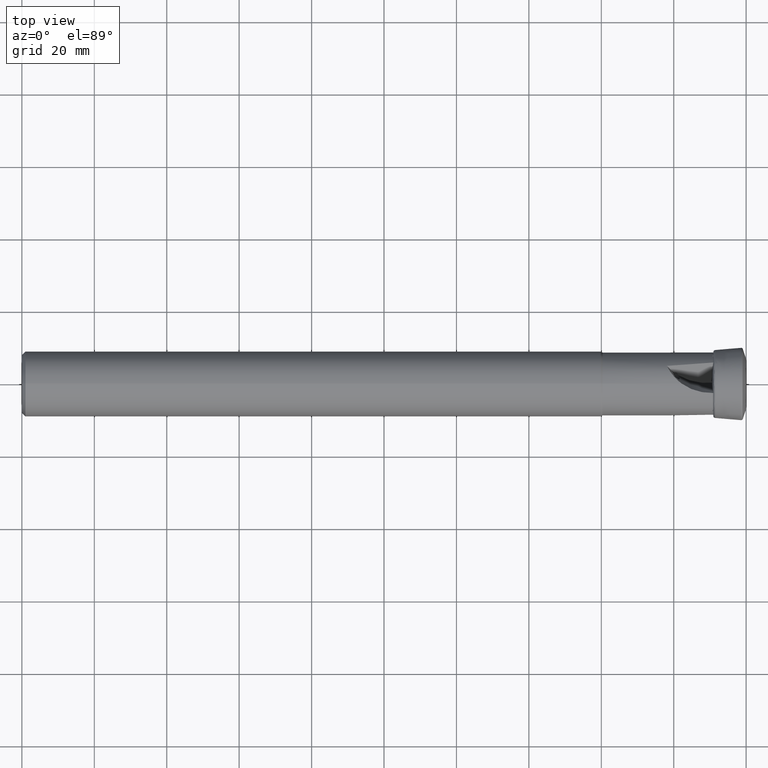
[diagram: clean part render]
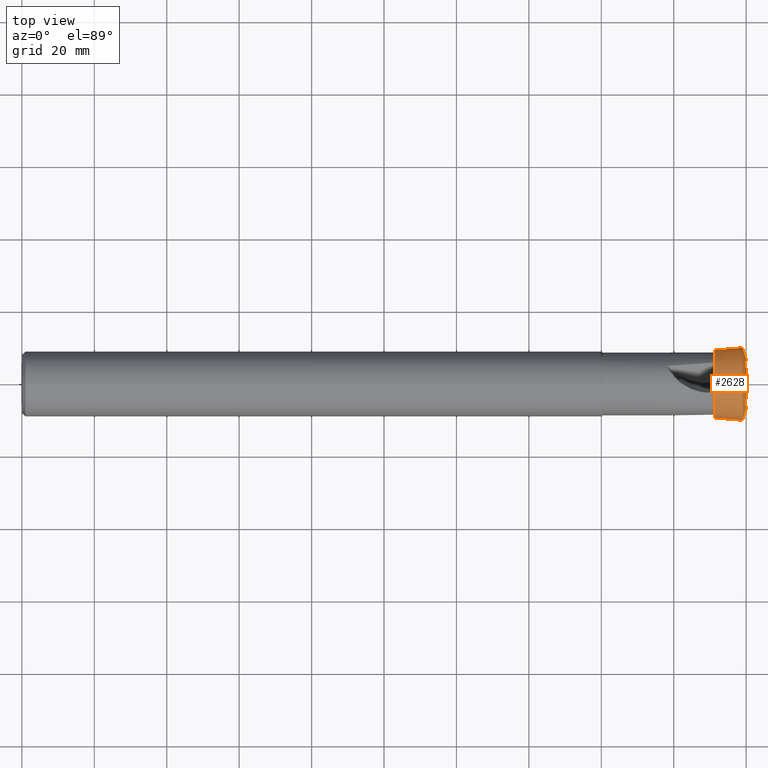
[diagram: same view with one face highlighted and labeled with its STEP entity id]
A machine part, top view. The second image highlights one B-rep face of the part: STEP entity #2628.
In plain terms, the highlighted face is a freeform B-spline surface patch.
Its self-contained STEP definition (entity closure, byte-faithful):
#5 = CARTESIAN_POINT ( 'NONE',  ( 199.4119645448908800, 8.669143952701206900, 0.0000000000000000000 ) ) ;
#6 = CARTESIAN_POINT ( 'NONE',  ( 192.6119085367816100, -9.477933791716463200, -1.160712128055610400E-015 ) ) ;
#14 = CARTESIAN_POINT ( 'NONE',  ( 199.3855371809107500, 3.600040746353761800, 8.817556753644365300E-016 ) ) ;
#17 = CARTESIAN_POINT ( 'NONE',  ( 194.6386071151543400, -9.655722273275953800, -1.182484937542320200E-015 ) ) ;
#29 = CARTESIAN_POINT ( 'NONE',  ( 199.6036751270756000, 4.135506003673529400, 8.271012007347060500 ) ) ;
#42 = CARTESIAN_POINT ( 'NONE',  ( 193.7467906099955100, -9.577412630905820700, -1.172894772255224500E-015 ) ) ;
#56 = DIRECTION ( 'NONE',  ( 0.0000000000000000000, 1.000000000000000000, 0.0000000000000000000 ) ) ;
#84 = CARTESIAN_POINT ( 'NONE',  ( 199.8746375878326900, 7.284263749510698100, 0.0000000000000000000 ) ) ;
#97 = CARTESIAN_POINT ( 'NONE',  ( 194.2669520451954100, 9.623079687076103300, 0.0000000000000000000 ) ) ;
#130 = VERTEX_POINT ( 'NONE', #1091 ) ;
#146 = CARTESIAN_POINT ( 'NONE',  ( 199.8746375878326900, 7.284263749510698100, 1.784130056996674800E-015 ) ) ;
#159 = CARTESIAN_POINT ( 'NONE',  ( 199.9971799208755700, 6.793817987459164000, 1.664005490466315400E-015 ) ) ;
#171 = CARTESIAN_POINT ( 'NONE',  ( 199.7942596870010200, -7.528622152444535600, -9.219903020981057000E-016 ) ) ;
#187 = CARTESIAN_POINT ( 'NONE',  ( 199.2206415278179500, -9.242613445145174500, -1.131893697135332700E-015 ) ) ;
#219 = CARTESIAN_POINT ( 'NONE',  ( 198.7389781143983200, 9.990615986158877200, 2.446995177791969500E-015 ) ) ;
#236 = CARTESIAN_POINT ( 'NONE',  ( 199.0883015219359600, 9.649449036425453500, 2.363433375198789000E-015 ) ) ;
#251 = CARTESIAN_POINT ( 'NONE',  ( 198.8874328272482900, 9.927476827135711400, 2.431530543992254000E-015 ) ) ;
#273 = CARTESIAN_POINT ( 'NONE',  ( 199.0145282432595800, -9.808799892423831300, 19.61759978484765200 ) ) ;
#280 = CARTESIAN_POINT ( 'NONE',  ( 199.1376732748907400, -3.524748830736267500, -4.316572373359546000E-016 ) ) ;
#286 = CARTESIAN_POINT ( 'NONE',  ( 195.5628970118675600, -9.736894901505728200, 19.47378980301144900 ) ) ;
#292 = CARTESIAN_POINT ( 'NONE',  ( 199.8818364765468500, -5.969050106520179500, 11.93810021304035400 ) ) ;
#299 = CARTESIAN_POINT ( 'NONE',  ( 199.5270704870732200, 3.768665411281232100, 0.0000000000000000000 ) ) ;
#309 = CARTESIAN_POINT ( 'NONE',  ( 199.1376732748907400, 3.524748830736265800, 7.049497661472534200 ) ) ;
#312 = CARTESIAN_POINT ( 'NONE',  ( 199.4119645448908800, -8.669143952701206900, -1.061663939302316700E-015 ) ) ;
#319 = CARTESIAN_POINT ( 'NONE',  ( 194.6386071151543400, -9.655722273275953800, -1.182484937542320200E-015 ) ) ;
#327 = CARTESIAN_POINT ( 'NONE',  ( 199.7198599573671900, 4.890791981063745000, 1.197898548981051700E-015 ) ) ;
#331 = CARTESIAN_POINT ( 'NONE',  ( 198.3345865014057900, 9.974130476694655900, 0.0000000000000000000 ) ) ;
#333 = CARTESIAN_POINT ( 'NONE',  ( 195.9548673972028900, 9.771315552143319000, 2.393282062878214000E-015 ) ) ;
#344 = CARTESIAN_POINT ( 'NONE',  ( 199.5270704870732200, -3.768665411281232100, -4.615284032982904700E-016 ) ) ;
#347 = CARTESIAN_POINT ( 'NONE',  ( 199.6437202294671100, -4.378186700153892600, -5.361732328412976200E-016 ) ) ;
#352 = CARTESIAN_POINT ( 'NONE',  ( 193.1957047401006400, -9.528924728964534900, -1.166956716864248100E-015 ) ) ;
#363 = CARTESIAN_POINT ( 'NONE',  ( 199.7503744142412400, 5.094116356522771800, 10.18823271304554900 ) ) ;
#377 = CARTESIAN_POINT ( 'NONE',  ( 191.4293979957715200, 9.372855675777435300, 0.0000000000000000000 ) ) ;
#380 = CARTESIAN_POINT ( 'NONE',  ( 196.8045187664748100, -9.845907074256627900, -1.205775858319066000E-015 ) ) ;
#403 = CARTESIAN_POINT ( 'NONE',  ( 199.9575874871412400, 6.476802528865865000, 12.95360505773173500 ) ) ;
#408 = CARTESIAN_POINT ( 'NONE',  ( 191.4293979957715200, 9.372855675777424600, 18.74571135155486000 ) ) ;
#409 = CARTESIAN_POINT ( 'NONE',  ( 199.3105781519771000, 8.971050438694492300, 0.0000000000000000000 ) ) ;
#463 = CARTESIAN_POINT ( 'NONE',  ( 194.6386071151543400, 9.655722273275953800, 0.0000000000000000000 ) ) ;
#498 = CARTESIAN_POINT ( 'NONE',  ( 191.8250809874841100, 9.408367885567450600, 0.0000000000000000000 ) ) ;
#515 = CARTESIAN_POINT ( 'NONE',  ( 199.4916733344939000, 8.430952631885135800, 2.064987830880217400E-015 ) ) ;
#528 = CARTESIAN_POINT ( 'NONE',  ( 199.9833844350473000, 6.633335259903447000, 13.26667051980689900 ) ) ;
#544 = CARTESIAN_POINT ( 'NONE',  ( 199.8746375878326900, -7.284263749510699900, 14.56852749902139300 ) ) ;
#578 = CARTESIAN_POINT ( 'NONE',  ( 198.5718774307784700, 10.00754271673519300, 2.451141031076032000E-015 ) ) ;
#588 = CARTESIAN_POINT ( 'NONE',  ( 198.0467923785635900, 9.955370482197189100, 2.438362519069766100E-015 ) ) ;
#600 = CARTESIAN_POINT ( 'NONE',  ( 199.0883015219359600, -9.649449036425453500, -1.181716687599394500E-015 ) ) ;
#614 = CARTESIAN_POINT ( 'NONE',  ( 199.9233176210255500, -6.241481303348313000, -7.643610100083561800E-016 ) ) ;
#617 = CARTESIAN_POINT ( 'NONE',  ( 199.7942596870010200, 7.528622152444535600, 0.0000000000000000000 ) ) ;
#618 = CARTESIAN_POINT ( 'NONE',  ( 196.3749575718929900, -9.808220288187936100, -1.201160558126148800E-015 ) ) ;
#628 = CARTESIAN_POINT ( 'NONE',  ( 199.6036751270756000, 4.135506003673531200, 1.012906838050690300E-015 ) ) ;
#631 = CARTESIAN_POINT ( 'NONE',  ( 192.1780770274573900, -9.439093133072656600, -1.155955519227119000E-015 ) ) ;
#636 = CARTESIAN_POINT ( 'NONE',  ( 199.5792677437501700, 3.924804937301749100, 0.0000000000000000000 ) ) ;
#639 = CARTESIAN_POINT ( 'NONE',  ( 194.9679311315870200, 9.684643535001363500, 19.36928707000273800 ) ) ;
#644 = CARTESIAN_POINT ( 'NONE',  ( 199.7909970509005000, 5.364262816467025600, 10.72852563293405500 ) ) ;
#648 = CARTESIAN_POINT ( 'NONE',  ( 199.7198599573671900, -4.890791981063745000, -5.989492744905258500E-016 ) ) ;
#651 = CARTESIAN_POINT ( 'NONE',  ( 197.2499513093479500, 9.885197841270111100, 2.421175179049953600E-015 ) ) ;
#659 = CARTESIAN_POINT ( 'NONE',  ( 199.5792677437501700, 3.924804937301749100, 9.612999607488629600E-016 ) ) ;
#661 = CARTESIAN_POINT ( 'NONE',  ( 199.7942596870010200, -7.528622152444535600, -9.219903020981057000E-016 ) ) ;
#666 = CARTESIAN_POINT ( 'NONE',  ( 194.2669520451954100, 9.623079687076098000, 19.24615937415220700 ) ) ;
#672 = CARTESIAN_POINT ( 'NONE',  ( 199.7909970509005000, -5.364262816467027400, -6.569327287971511100E-016 ) ) ;
#676 = CARTESIAN_POINT ( 'NONE',  ( 199.3105781519771000, -8.971050438694492300, -1.098636820473666800E-015 ) ) ;
#680 = CARTESIAN_POINT ( 'NONE',  ( 191.5996406962192700, -9.385338457373439500, -1.149372470073693900E-015 ) ) ;
#686 = CARTESIAN_POINT ( 'NONE',  ( 194.2669520451954100, -9.623079687076103300, -1.178487373671766300E-015 ) ) ;
#690 = CARTESIAN_POINT ( 'NONE',  ( 191.8250809874841100, -9.408367885567450600, -1.152192761626093000E-015 ) ) ;
#702 = CARTESIAN_POINT ( 'NONE',  ( 199.6036751270756000, 4.135506003673531200, 0.0000000000000000000 ) ) ;
#714 = CARTESIAN_POINT ( 'NONE',  ( 191.4638893845114800, -9.376701179652005900, -1.148314708622204000E-015 ) ) ;
#715 = CARTESIAN_POINT ( 'NONE',  ( 198.7389781143983200, 9.990615986158877200, 0.0000000000000000000 ) ) ;
#790 = CARTESIAN_POINT ( 'NONE',  ( 199.9806326561305500, -6.952329924318736900, 13.90465984863746500 ) ) ;
#799 = CARTESIAN_POINT ( 'NONE',  ( 191.4293979957715200, 9.372855675777435300, 0.0000000000000000000 ) ) ;
#804 = CARTESIAN_POINT ( 'NONE',  ( 199.5600713942759800, -8.226737700096023800, 16.45347540019204000 ) ) ;
#824 = CARTESIAN_POINT ( 'NONE',  ( 199.4916733344939000, -8.430952631885137500, 16.86190526377026800 ) ) ;
#835 = CARTESIAN_POINT ( 'NONE',  ( 199.3105781519771000, 8.971050438694492300, 2.197273640947333600E-015 ) ) ;
#851 = CARTESIAN_POINT ( 'NONE',  ( 199.9806326561305500, 6.952329924318734200, 1.702829717686659800E-015 ) ) ;
#865 = CARTESIAN_POINT ( 'NONE',  ( 199.1398904212730400, 9.476393459065150200, 2.321046983421010000E-015 ) ) ;
#874 = CARTESIAN_POINT ( 'NONE',  ( 199.2206415278179500, 9.242613445145169100, 18.48522689029034900 ) ) ;
#907 = CARTESIAN_POINT ( 'NONE',  ( 197.6599947447499500, 9.920574891577455600, 2.429840057334386600E-015 ) ) ;
#920 = CARTESIAN_POINT ( 'NONE',  ( 196.8045187664747900, -9.845907074256629700, 19.69181414851324900 ) ) ;
#928 = ORIENTED_EDGE ( 'NONE', *, *, #3694, .T. ) ;
#932 = CARTESIAN_POINT ( 'NONE',  ( 199.1376732748907400, 3.524748830736267500, 0.0000000000000000000 ) ) ;
#933 = CARTESIAN_POINT ( 'NONE',  ( 195.9548673972028900, 9.771315552143313700, 19.54263110428663800 ) ) ;
#945 = CARTESIAN_POINT ( 'NONE',  ( 199.0883015219359600, -9.649449036425453500, -1.181716687599394500E-015 ) ) ;
#949 = CARTESIAN_POINT ( 'NONE',  ( 199.7198599573671900, 4.890791981063745000, 0.0000000000000000000 ) ) ;
#951 = CARTESIAN_POINT ( 'NONE',  ( 194.2669520451954100, -9.623079687076103300, -1.178487373671766300E-015 ) ) ;
#959 = CARTESIAN_POINT ( 'NONE',  ( 199.6820012863188700, 4.640381309272348700, 9.280762618544702700 ) ) ;
#963 = CARTESIAN_POINT ( 'NONE',  ( 198.7389781143983200, -9.990615986158877200, -1.223497588895984700E-015 ) ) ;
#976 = CARTESIAN_POINT ( 'NONE',  ( 199.6437202294671100, 4.378186700153890800, 8.756373400307785100 ) ) ;
#979 = CARTESIAN_POINT ( 'NONE',  ( 194.9679311315870200, -9.684643535001368900, -1.186026770602253300E-015 ) ) ;
#992 = CARTESIAN_POINT ( 'NONE',  ( 191.4293979957715200, -9.372855675777435300, -1.147843770221093700E-015 ) ) ;
#1007 = CARTESIAN_POINT ( 'NONE',  ( 195.2420344223780800, -9.708715759506178600, -1.188974767871070500E-015 ) ) ;
#1015 = CARTESIAN_POINT ( 'NONE',  ( 191.4638893845114800, 9.376701179652005900, 2.296629417244408000E-015 ) ) ;
#1027 = CARTESIAN_POINT ( 'NONE',  ( 199.3855371809107500, 3.600040746353761800, 0.0000000000000000000 ) ) ;
#1036 = CARTESIAN_POINT ( 'NONE',  ( 191.4293979957715200, 0.0000000000000000000, 0.0000000000000000000 ) ) ;
#1047 = CARTESIAN_POINT ( 'NONE',  ( 195.9548673972028900, 9.771315552143319000, 0.0000000000000000000 ) ) ;
#1091 = CARTESIAN_POINT ( 'NONE',  ( 191.4293979957715200, -9.372855675777435300, -1.147843770221093700E-015 ) ) ;
#1169 = CARTESIAN_POINT ( 'NONE',  ( 199.2206415278179500, -9.242613445145178000, 18.48522689029034500 ) ) ;
#1203 = CARTESIAN_POINT ( 'NONE',  ( 198.3345865014057900, -9.974130476694655900, -1.221478696256217500E-015 ) ) ;
#1232 = CARTESIAN_POINT ( 'NONE',  ( 199.3855371809107500, -3.600040746353761800, -4.408778376822182600E-016 ) ) ;
#1240 = CARTESIAN_POINT ( 'NONE',  ( 193.1957047401006700, 9.528924728964531400, 19.05784945792907300 ) ) ;
#1247 = CARTESIAN_POINT ( 'NONE',  ( 199.8310191858334700, -5.630263486872677500, -6.895084157554840300E-016 ) ) ;
#1252 = CARTESIAN_POINT ( 'NONE',  ( 199.0883015219359600, 9.649449036425453500, 0.0000000000000000000 ) ) ;
#1255 = CARTESIAN_POINT ( 'NONE',  ( 196.8045187664748100, 9.845907074256627900, 2.411551716638132000E-015 ) ) ;
#1265 = CARTESIAN_POINT ( 'NONE',  ( 199.6820012863188700, -4.640381309272352300, 9.280762618544701000 ) ) ;
#1268 = CARTESIAN_POINT ( 'NONE',  ( 199.7015285006921500, -7.804126116101917500, -9.557298068226478200E-016 ) ) ;
#1270 = CARTESIAN_POINT ( 'NONE',  ( 199.5600713942759500, 8.226737700096022000, 0.0000000000000000000 ) ) ;
#1278 = CARTESIAN_POINT ( 'NONE',  ( 199.8310191858335000, -5.630263486872679300, 11.26052697374535300 ) ) ;
#1281 = CARTESIAN_POINT ( 'NONE',  ( 199.9376653144676900, -7.104203952299465100, -8.700140630673515900E-016 ) ) ;
#1290 = CARTESIAN_POINT ( 'NONE',  ( 199.7198599573671900, -4.890791981063745000, -5.989492744905258500E-016 ) ) ;
#1291 = CARTESIAN_POINT ( 'NONE',  ( 192.6119085367816100, -9.477933791716463200, -1.160712128055610400E-015 ) ) ;
#1297 = CARTESIAN_POINT ( 'NONE',  ( 191.8250809874841100, -9.408367885567450600, 18.81673577113489800 ) ) ;
#1304 = CARTESIAN_POINT ( 'NONE',  ( 199.8310191858334700, -5.630263486872677500, -6.895084157554840300E-016 ) ) ;
#1312 = CARTESIAN_POINT ( 'NONE',  ( 199.9806326561305500, -6.952329924318734200, -8.514148588433299100E-016 ) ) ;
#1315 = CARTESIAN_POINT ( 'NONE',  ( 192.1780770274573900, 9.439093133072656600, 2.311911038454238000E-015 ) ) ;
#1331 = CARTESIAN_POINT ( 'NONE',  ( 191.5996406962192700, 9.385338457373434200, 18.77067691474687900 ) ) ;
#1368 = CARTESIAN_POINT ( 'NONE',  ( 199.9971799208755700, 6.793817987459164000, 0.0000000000000000000 ) ) ;
#1416 = DIRECTION ( 'NONE',  ( 0.0000000000000000000, 1.000000000000000000, 0.0000000000000000000 ) ) ;
#1426 = VERTEX_POINT ( 'NONE', #3605 ) ;
#1427 = CARTESIAN_POINT ( 'NONE',  ( 191.5996406962192700, 9.385338457373439500, 0.0000000000000000000 ) ) ;
#1431 = CARTESIAN_POINT ( 'NONE',  ( 199.7942596870010200, 7.528622152444532000, 15.05724430488906900 ) ) ;
#1444 = CARTESIAN_POINT ( 'NONE',  ( 199.9833844350472700, 6.633335259903450500, 1.624698558742407600E-015 ) ) ;
#1445 = EDGE_CURVE ( 'NONE', #2893, #1426, #2464, .T. ) ;
#1458 = CARTESIAN_POINT ( 'NONE',  ( 199.9376653144677200, 7.104203952299462400, 14.20840790459892800 ) ) ;
#1515 = CARTESIAN_POINT ( 'NONE',  ( 199.0145282432595500, -9.808799892423829500, -1.201231539173374500E-015 ) ) ;
#1538 = CARTESIAN_POINT ( 'NONE',  ( 197.6599947447499500, -9.920574891577457400, 19.84114978315490800 ) ) ;
#1555 = CARTESIAN_POINT ( 'NONE',  ( 195.2420344223780800, -9.708715759506180400, 19.41743151901235400 ) ) ;
#1562 = CARTESIAN_POINT ( 'NONE',  ( 199.5792677437501700, -3.924804937301750000, 7.849609874603497200 ) ) ;
#1569 = CARTESIAN_POINT ( 'NONE',  ( 192.6119085367816100, -9.477933791716463200, 18.95586758343292300 ) ) ;
#1576 = CARTESIAN_POINT ( 'NONE',  ( 199.9575874871412400, -6.476802528865867700, -7.931795485685067600E-016 ) ) ;
#1580 = CARTESIAN_POINT ( 'NONE',  ( 197.6599947447499500, 9.920574891577455600, 0.0000000000000000000 ) ) ;
#1582 = CARTESIAN_POINT ( 'NONE',  ( 192.1780770274574200, -9.439093133072658400, 18.87818626614530600 ) ) ;
#1589 = CARTESIAN_POINT ( 'NONE',  ( 199.5270704870731900, -3.768665411281233000, 7.537330822562462500 ) ) ;
#1593 = CARTESIAN_POINT ( 'NONE',  ( 191.4638893845114800, -9.376701179652007700, -1.148314708622204000E-015 ) ) ;
#1598 = CARTESIAN_POINT ( 'NONE',  ( 196.8045187664747900, 9.845907074256622600, 19.69181414851325600 ) ) ;
#1605 = CARTESIAN_POINT ( 'NONE',  ( 199.8818364765468200, 5.969050106520177800, 1.461995621380020700E-015 ) ) ;
#1610 = CARTESIAN_POINT ( 'NONE',  ( 198.5718774307784700, -10.00754271673519300, -1.225570515538016000E-015 ) ) ;
#1614 = CARTESIAN_POINT ( 'NONE',  ( 193.7467906099954900, -9.577412630905822500, 19.15482526181163800 ) ) ;
#1620 = CARTESIAN_POINT ( 'NONE',  ( 199.7198599573671900, 4.890791981063742400, 9.781583962127490000 ) ) ;
#1625 = CARTESIAN_POINT ( 'NONE',  ( 191.5996406962192700, -9.385338457373439500, -1.149372470073694100E-015 ) ) ;
#1629 = AXIS2_PLACEMENT_3D ( 'NONE', #1036, #2983, #56 ) ;
#1633 =( BOUNDED_SURFACE ( )  B_SPLINE_SURFACE ( 3, 3, ( 
 ( #280, #2292, #309, #1952 ),
 ( #4128, #2559, #2279, #3482 ),
 ( #1232, #2247, #3835, #14 ),
 ( #344, #1589, #3163, #2899 ),
 ( #1933, #1562, #3538, #659 ),
 ( #3858, #3176, #29, #628 ),
 ( #2867, #3187, #976, #3218 ),
 ( #2230, #1265, #959, #3203 ),
 ( #1290, #2263, #1620, #327 ),
 ( #2576, #1970, #363, #2606 ),
 ( #672, #1920, #644, #2880 ),
 ( #1247, #1278, #3523, #2912 ),
 ( #3804, #292, #2542, #1605 ),
 ( #614, #3849, #2854, #3497 ),
 ( #1576, #3823, #403, #3095 ),
 ( #3071, #3368, #528, #1444 ),
 ( #2723, #2103, #3662, #159 ),
 ( #1764, #790, #2423, #851 ),
 ( #1822, #3384, #1458, #3399 ),
 ( #3037, #544, #3352, #146 ),
 ( #171, #2095, #1431, #1798 ),
 ( #2451, #3677, #2410, #1782 ),
 ( #4032, #3999, #2141, #2438 ),
 ( #2739, #804, #3058, #2465 ),
 ( #2752, #824, #3692, #515 ),
 ( #4009, #3705, #2784, #2112 ),
 ( #1808, #4021, #2127, #835 ),
 ( #187, #1169, #874, #3129 ),
 ( #3771, #3410, #4088, #865 ),
 ( #600, #1849, #2211, #236 ),
 ( #1515, #273, #3425, #2527 ),
 ( #3758, #2154, #1860, #251 ),
 ( #4060, #3141, #1836, #219 ),
 ( #2171, #2499, #2831, #578 ),
 ( #1203, #4047, #3727, #2818 ),
 ( #3451, #2837, #2196, #588 ),
 ( #3465, #1538, #1886, #907 ),
 ( #3155, #2271, #2599, #651 ),
 ( #3828, #920, #1598, #1255 ),
 ( #618, #2569, #1925, #1944 ),
 ( #3843, #2873, #933, #333 ),
 ( #2585, #286, #1912, #3475 ),
 ( #3183, #1555, #2536, #2241 ),
 ( #3813, #4135, #639, #1960 ),
 ( #319, #3504, #2286, #3530 ),
 ( #951, #4110, #666, #3196 ),
 ( #2891, #1614, #3171, #2225 ),
 ( #352, #2908, #1240, #3490 ),
 ( #6, #1569, #4121, #2551 ),
 ( #2860, #1582, #2254, #1315 ),
 ( #690, #1297, #2327, #2353 ),
 ( #680, #2934, #1331, #2652 ),
 ( #714, #2625, #3544, #1015 ),
 ( #2017, #2921, #408, #1659 ) ),
 .UNSPECIFIED., .F., .F., .T. ) 
 B_SPLINE_SURFACE_WITH_KNOTS ( ( 4, 1, 1, 1, 1, 1, 1, 1, 1, 1, 1, 1, 1, 1, 1, 1, 1, 1, 1, 1, 1, 1, 1, 1, 1, 1, 1, 1, 1, 1, 1, 1, 1, 1, 1, 1, 1, 1, 1, 1, 1, 1, 1, 1, 1, 1, 1, 1, 1, 1, 1, 4 ),
 ( 4, 4 ),
 ( 0.0000000000000000000, 0.01079642995104131700, 0.01532348834993373400, 0.02260252296964555100, 0.02757266909529279200, 0.03750404126298397700, 0.04827019890016406200, 0.05525234195834419900, 0.06395321772346114500, 0.06974363027567580300, 0.08378375853898870100, 0.09204725388762882700, 0.1055225025609145600, 0.1125648133953223700, 0.1168827842677838300, 0.1220909148123621200, 0.1293484100016217800, 0.1333611602596157500, 0.1385586123173471200, 0.1492703210375646600, 0.1602272768487568700, 0.1689184821719552600, 0.1755562854995513200, 0.1804861160482607000, 0.1914113094369782300, 0.2017893496055303800, 0.2137469297706997800, 0.2212919403033521700, 0.2276110718369053200, 0.2326192677104103000, 0.2394468212576911200, 0.2452085252564957200, 0.2491655890603337900, 0.2568398856194478200, 0.2701198177925744900, 0.2793170045755716300, 0.2973905859228663200, 0.3131081852445027300, 0.3260177972526310300, 0.3424268269101061200, 0.3571515908891341200, 0.3671130111343015600, 0.3760669169686796700, 0.3858893146677768700, 0.4016402017108171000, 0.4150323301055715600, 0.4404239630766488800, 0.4594204364518828000, 0.4762300847904728000, 0.4859319036808278900, 0.4963883166608952200, 0.5000000000000018900 ),
 ( 0.0000000000000000000, 1.000000000000000000 ),
 .UNSPECIFIED. ) 
 GEOMETRIC_REPRESENTATION_ITEM ( )  RATIONAL_B_SPLINE_SURFACE ( (
 ( 1.000000000000000000, 0.3333333333333334300, 0.3333333333333334300, 1.000000000000000000),
 ( 1.000000000000000000, 0.3333333333333334300, 0.3333333333333334300, 1.000000000000000000),
 ( 1.000000000000000000, 0.3333333333333334300, 0.3333333333333334300, 1.000000000000000000),
 ( 1.000000000000000000, 0.3333333333333334300, 0.3333333333333334300, 1.000000000000000000),
 ( 1.000000000000000000, 0.3333333333333334300, 0.3333333333333334300, 1.000000000000000000),
 ( 1.000000000000000000, 0.3333333333333334300, 0.3333333333333334300, 1.000000000000000000),
 ( 1.000000000000000000, 0.3333333333333334300, 0.3333333333333334300, 1.000000000000000000),
 ( 1.000000000000000000, 0.3333333333333334300, 0.3333333333333334300, 1.000000000000000000),
 ( 1.000000000000000000, 0.3333333333333334300, 0.3333333333333334300, 1.000000000000000000),
 ( 1.000000000000000000, 0.3333333333333334300, 0.3333333333333334300, 1.000000000000000000),
 ( 1.000000000000000000, 0.3333333333333334300, 0.3333333333333334300, 1.000000000000000000),
 ( 1.000000000000000000, 0.3333333333333334300, 0.3333333333333334300, 1.000000000000000000),
 ( 1.000000000000000000, 0.3333333333333334300, 0.3333333333333334300, 1.000000000000000000),
 ( 1.000000000000000000, 0.3333333333333334300, 0.3333333333333334300, 1.000000000000000000),
 ( 1.000000000000000000, 0.3333333333333334300, 0.3333333333333334300, 1.000000000000000000),
 ( 1.000000000000000000, 0.3333333333333334300, 0.3333333333333334300, 1.000000000000000000),
 ( 1.000000000000000000, 0.3333333333333334300, 0.3333333333333334300, 1.000000000000000000),
 ( 1.000000000000000000, 0.3333333333333334300, 0.3333333333333334300, 1.000000000000000000),
 ( 1.000000000000000000, 0.3333333333333334300, 0.3333333333333334300, 1.000000000000000000),
 ( 1.000000000000000000, 0.3333333333333334300, 0.3333333333333334300, 1.000000000000000000),
 ( 1.000000000000000000, 0.3333333333333334300, 0.3333333333333334300, 1.000000000000000000),
 ( 1.000000000000000000, 0.3333333333333334300, 0.3333333333333334300, 1.000000000000000000),
 ( 1.000000000000000000, 0.3333333333333334300, 0.3333333333333334300, 1.000000000000000000),
 ( 1.000000000000000000, 0.3333333333333334300, 0.3333333333333334300, 1.000000000000000000),
 ( 1.000000000000000000, 0.3333333333333334300, 0.3333333333333334300, 1.000000000000000000),
 ( 1.000000000000000000, 0.3333333333333334300, 0.3333333333333334300, 1.000000000000000000),
 ( 1.000000000000000000, 0.3333333333333334300, 0.3333333333333334300, 1.000000000000000000),
 ( 1.000000000000000000, 0.3333333333333334300, 0.3333333333333334300, 1.000000000000000000),
 ( 1.000000000000000000, 0.3333333333333334300, 0.3333333333333334300, 1.000000000000000000),
 ( 1.000000000000000000, 0.3333333333333334300, 0.3333333333333334300, 1.000000000000000000),
 ( 1.000000000000000000, 0.3333333333333334300, 0.3333333333333334300, 1.000000000000000000),
 ( 1.000000000000000000, 0.3333333333333334300, 0.3333333333333334300, 1.000000000000000000),
 ( 1.000000000000000000, 0.3333333333333334300, 0.3333333333333334300, 1.000000000000000000),
 ( 1.000000000000000000, 0.3333333333333334300, 0.3333333333333334300, 1.000000000000000000),
 ( 1.000000000000000000, 0.3333333333333334300, 0.3333333333333334300, 1.000000000000000000),
 ( 1.000000000000000000, 0.3333333333333334300, 0.3333333333333334300, 1.000000000000000000),
 ( 1.000000000000000000, 0.3333333333333334300, 0.3333333333333334300, 1.000000000000000000),
 ( 1.000000000000000000, 0.3333333333333334300, 0.3333333333333334300, 1.000000000000000000),
 ( 1.000000000000000000, 0.3333333333333334300, 0.3333333333333334300, 1.000000000000000000),
 ( 1.000000000000000000, 0.3333333333333334300, 0.3333333333333334300, 1.000000000000000000),
 ( 1.000000000000000000, 0.3333333333333334300, 0.3333333333333334300, 1.000000000000000000),
 ( 1.000000000000000000, 0.3333333333333334300, 0.3333333333333334300, 1.000000000000000000),
 ( 1.000000000000000000, 0.3333333333333334300, 0.3333333333333334300, 1.000000000000000000),
 ( 1.000000000000000000, 0.3333333333333334300, 0.3333333333333334300, 1.000000000000000000),
 ( 1.000000000000000000, 0.3333333333333334300, 0.3333333333333334300, 1.000000000000000000),
 ( 1.000000000000000000, 0.3333333333333334300, 0.3333333333333334300, 1.000000000000000000),
 ( 1.000000000000000000, 0.3333333333333334300, 0.3333333333333334300, 1.000000000000000000),
 ( 1.000000000000000000, 0.3333333333333334300, 0.3333333333333334300, 1.000000000000000000),
 ( 1.000000000000000000, 0.3333333333333334300, 0.3333333333333334300, 1.000000000000000000),
 ( 1.000000000000000000, 0.3333333333333334300, 0.3333333333333334300, 1.000000000000000000),
 ( 1.000000000000000000, 0.3333333333333334300, 0.3333333333333334300, 1.000000000000000000),
 ( 1.000000000000000000, 0.3333333333333334300, 0.3333333333333334300, 1.000000000000000000),
 ( 1.000000000000000000, 0.3333333333333334300, 0.3333333333333334300, 1.000000000000000000),
 ( 1.000000000000000000, 0.3333333333333334300, 0.3333333333333334300, 1.000000000000000000) ) ) 
 REPRESENTATION_ITEM ( '' )  SURFACE ( )  );
#1653 = CARTESIAN_POINT ( 'NONE',  ( 197.2499513093479500, -9.885197841270111100, -1.210587589524976800E-015 ) ) ;
#1659 = CARTESIAN_POINT ( 'NONE',  ( 191.4293979957715200, 9.372855675777430000, 2.295687540442186600E-015 ) ) ;
#1676 = CARTESIAN_POINT ( 'NONE',  ( 199.2403954301726400, 3.544720621546354700, 0.0000000000000000000 ) ) ;
#1691 = CARTESIAN_POINT ( 'NONE',  ( 199.2206415278179500, 9.242613445145174500, 0.0000000000000000000 ) ) ;
#1705 = CARTESIAN_POINT ( 'NONE',  ( 199.9376653144676900, 7.104203952299465100, 0.0000000000000000000 ) ) ;
#1764 = CARTESIAN_POINT ( 'NONE',  ( 199.9806326561305500, -6.952329924318734200, -8.514148588433299100E-016 ) ) ;
#1782 = CARTESIAN_POINT ( 'NONE',  ( 199.7015285006921500, 7.804126116101917500, 1.911459613645295600E-015 ) ) ;
#1798 = CARTESIAN_POINT ( 'NONE',  ( 199.7942596870010200, 7.528622152444535600, 1.843980604196211400E-015 ) ) ;
#1808 = CARTESIAN_POINT ( 'NONE',  ( 199.3105781519771000, -8.971050438694492300, -1.098636820473666800E-015 ) ) ;
#1822 = CARTESIAN_POINT ( 'NONE',  ( 199.9376653144676900, -7.104203952299465100, -8.700140630673515900E-016 ) ) ;
#1836 = CARTESIAN_POINT ( 'NONE',  ( 198.7389781143983200, 9.990615986158871900, 19.98123197231775400 ) ) ;
#1849 = CARTESIAN_POINT ( 'NONE',  ( 199.0883015219359600, -9.649449036425455300, 19.29889807285090300 ) ) ;
#1860 = CARTESIAN_POINT ( 'NONE',  ( 198.8874328272482900, 9.927476827135706100, 19.85495365427142300 ) ) ;
#1886 = CARTESIAN_POINT ( 'NONE',  ( 197.6599947447499500, 9.920574891577450300, 19.84114978315491100 ) ) ;
#1893 = CARTESIAN_POINT ( 'NONE',  ( 199.3855371809107500, -3.600040746353761800, -4.408778376822182600E-016 ) ) ;
#1912 = CARTESIAN_POINT ( 'NONE',  ( 195.5628970118675600, 9.736894901505721100, 19.47378980301145300 ) ) ;
#1920 = CARTESIAN_POINT ( 'NONE',  ( 199.7909970509005000, -5.364262816467029200, 10.72852563293405300 ) ) ;
#1922 = CARTESIAN_POINT ( 'NONE',  ( 199.2206415278179500, -9.242613445145174500, -1.131893697135332700E-015 ) ) ;
#1924 = CARTESIAN_POINT ( 'NONE',  ( 199.6437202294671100, 4.378186700153892600, 0.0000000000000000000 ) ) ;
#1925 = CARTESIAN_POINT ( 'NONE',  ( 196.3749575718929900, 9.808220288187930800, 19.61644057637587200 ) ) ;
#1933 = CARTESIAN_POINT ( 'NONE',  ( 199.5792677437501700, -3.924804937301749100, -4.806499803744314800E-016 ) ) ;
#1944 = CARTESIAN_POINT ( 'NONE',  ( 196.3749575718929900, 9.808220288187936100, 2.402321116252297500E-015 ) ) ;
#1952 = CARTESIAN_POINT ( 'NONE',  ( 199.1376732748907400, 3.524748830736267500, 8.633144746719092000E-016 ) ) ;
#1955 = CARTESIAN_POINT ( 'NONE',  ( 199.9971799208755700, -6.793817987459164000, -8.320027452331577100E-016 ) ) ;
#1960 = CARTESIAN_POINT ( 'NONE',  ( 194.9679311315870200, 9.684643535001368900, 2.372053541204506700E-015 ) ) ;
#1970 = CARTESIAN_POINT ( 'NONE',  ( 199.7503744142412400, -5.094116356522775400, 10.18823271304554700 ) ) ;
#1986 = CARTESIAN_POINT ( 'NONE',  ( 196.3749575718929900, -9.808220288187936100, -1.201160558126148800E-015 ) ) ;
#2017 = CARTESIAN_POINT ( 'NONE',  ( 191.4293979957715200, -9.372855675777430000, -1.147843770221093300E-015 ) ) ;
#2018 = CARTESIAN_POINT ( 'NONE',  ( 199.9575874871412400, 6.476802528865867700, 0.0000000000000000000 ) ) ;
#2095 = CARTESIAN_POINT ( 'NONE',  ( 199.7942596870010200, -7.528622152444537400, 15.05724430488906800 ) ) ;
#2103 = CARTESIAN_POINT ( 'NONE',  ( 199.9971799208755400, -6.793817987459165800, 13.58763597491832400 ) ) ;
#2112 = CARTESIAN_POINT ( 'NONE',  ( 199.4119645448908800, 8.669143952701206900, 2.123327878604633400E-015 ) ) ;
#2127 = CARTESIAN_POINT ( 'NONE',  ( 199.3105781519771000, 8.971050438694485200, 17.94210087738898100 ) ) ;
#2141 = CARTESIAN_POINT ( 'NONE',  ( 199.6216856158434300, 8.042808869529157100, 16.08561773905831800 ) ) ;
#2145 = ORIENTED_EDGE ( 'NONE', *, *, #1445, .T. ) ;
#2154 = CARTESIAN_POINT ( 'NONE',  ( 198.8874328272482900, -9.927476827135711400, 19.85495365427141900 ) ) ;
#2171 = CARTESIAN_POINT ( 'NONE',  ( 198.5718774307784700, -10.00754271673519300, -1.225570515538016000E-015 ) ) ;
#2196 = CARTESIAN_POINT ( 'NONE',  ( 198.0467923785635900, 9.955370482197183800, 19.91074096439437800 ) ) ;
#2211 = CARTESIAN_POINT ( 'NONE',  ( 199.0883015219359600, 9.649449036425448200, 19.29889807285090700 ) ) ;
#2225 = CARTESIAN_POINT ( 'NONE',  ( 193.7467906099955100, 9.577412630905820700, 2.345789544510449000E-015 ) ) ;
#2230 = CARTESIAN_POINT ( 'NONE',  ( 199.6820012863188900, -4.640381309272351400, -5.682828117223588900E-016 ) ) ;
#2237 = CARTESIAN_POINT ( 'NONE',  ( 199.8818364765468200, 5.969050106520177800, 0.0000000000000000000 ) ) ;
#2241 = CARTESIAN_POINT ( 'NONE',  ( 195.2420344223780800, 9.708715759506178600, 2.377949535742141000E-015 ) ) ;
#2244 = VERTEX_POINT ( 'NONE', #377 ) ;
#2247 = CARTESIAN_POINT ( 'NONE',  ( 199.3855371809107500, -3.600040746353763100, 7.200081492707521000 ) ) ;
#2249 = CARTESIAN_POINT ( 'NONE',  ( 198.3345865014057900, -9.974130476694655900, -1.221478696256217500E-015 ) ) ;
#2254 = CARTESIAN_POINT ( 'NONE',  ( 192.1780770274574200, 9.439093133072651300, 18.87818626614531300 ) ) ;
#2263 = CARTESIAN_POINT ( 'NONE',  ( 199.7198599573671900, -4.890791981063746800, 9.781583962127488300 ) ) ;
#2270 = CARTESIAN_POINT ( 'NONE',  ( 198.5718774307784700, 10.00754271673519300, 0.0000000000000000000 ) ) ;
#2271 = CARTESIAN_POINT ( 'NONE',  ( 197.2499513093479200, -9.885197841270112900, 19.77039568254021900 ) ) ;
#2279 = CARTESIAN_POINT ( 'NONE',  ( 199.2403954301726400, 3.544720621546353400, 7.089441243092709400 ) ) ;
#2286 = CARTESIAN_POINT ( 'NONE',  ( 194.6386071151543400, 9.655722273275948500, 19.31144454655190800 ) ) ;
#2292 = CARTESIAN_POINT ( 'NONE',  ( 199.1376732748907400, -3.524748830736268400, 7.049497661472532400 ) ) ;
#2294 = CARTESIAN_POINT ( 'NONE',  ( 199.9833844350472700, -6.633335259903450500, -8.123492793712038100E-016 ) ) ;
#2327 = CARTESIAN_POINT ( 'NONE',  ( 191.8250809874841100, 9.408367885567445300, 18.81673577113490100 ) ) ;
#2340 = CARTESIAN_POINT ( 'NONE',  ( 199.7015285006921500, 7.804126116101917500, 0.0000000000000000000 ) ) ;
#2353 = CARTESIAN_POINT ( 'NONE',  ( 191.8250809874841100, 9.408367885567450600, 2.304385523252186000E-015 ) ) ;
#2369 = CARTESIAN_POINT ( 'NONE',  ( 192.1780770274573900, 9.439093133072656600, 0.0000000000000000000 ) ) ;
#2410 = CARTESIAN_POINT ( 'NONE',  ( 199.7015285006921800, 7.804126116101914000, 15.60825223220383300 ) ) ;
#2423 = CARTESIAN_POINT ( 'NONE',  ( 199.9806326561305500, 6.952329924318731500, 13.90465984863746800 ) ) ;
#2438 = CARTESIAN_POINT ( 'NONE',  ( 199.6216856158434600, 8.042808869529160600, 1.969920027644565700E-015 ) ) ;
#2451 = CARTESIAN_POINT ( 'NONE',  ( 199.7015285006921500, -7.804126116101917500, -9.557298068226478200E-016 ) ) ;
#2464 = CIRCLE ( 'NONE', #2728, 3.524748830736267500 ) ;
#2465 = CARTESIAN_POINT ( 'NONE',  ( 199.5600713942759500, 8.226737700096022000, 2.014969598369490500E-015 ) ) ;
#2499 = CARTESIAN_POINT ( 'NONE',  ( 198.5718774307785000, -10.00754271673519500, 20.01508543347038200 ) ) ;
#2527 = CARTESIAN_POINT ( 'NONE',  ( 199.0145282432595500, 9.808799892423829500, 2.402463078346748900E-015 ) ) ;
#2533 = CARTESIAN_POINT ( 'NONE',  ( 199.1376732748907400, -3.524748830736267500, -4.316572373359582500E-016 ) ) ;
#2536 = CARTESIAN_POINT ( 'NONE',  ( 195.2420344223780800, 9.708715759506173300, 19.41743151901235700 ) ) ;
#2542 = CARTESIAN_POINT ( 'NONE',  ( 199.8818364765468500, 5.969050106520175100, 11.93810021304035400 ) ) ;
#2549 = CARTESIAN_POINT ( 'NONE',  ( 199.9233176210255500, 6.241481303348313000, 0.0000000000000000000 ) ) ;
#2551 = CARTESIAN_POINT ( 'NONE',  ( 192.6119085367816100, 9.477933791716463200, 2.321424256111220800E-015 ) ) ;
#2559 = CARTESIAN_POINT ( 'NONE',  ( 199.2403954301726400, -3.544720621546356000, 7.089441243092706700 ) ) ;
#2564 = CARTESIAN_POINT ( 'NONE',  ( 193.1957047401006400, -9.528924728964534900, -1.166956716864248100E-015 ) ) ;
#2566 = ORIENTED_EDGE ( 'NONE', *, *, #3960, .F. ) ;
#2569 = CARTESIAN_POINT ( 'NONE',  ( 196.3749575718929900, -9.808220288187937900, 19.61644057637586900 ) ) ;
#2576 = CARTESIAN_POINT ( 'NONE',  ( 199.7503744142412400, -5.094116356522774500, -6.238493290499792400E-016 ) ) ;
#2579 = CARTESIAN_POINT ( 'NONE',  ( 199.0145282432595500, -9.808799892423829500, -1.201231539173374500E-015 ) ) ;
#2585 = CARTESIAN_POINT ( 'NONE',  ( 195.5628970118675300, -9.736894901505726500, -1.192425717476317300E-015 ) ) ;
#2595 = CARTESIAN_POINT ( 'NONE',  ( 199.9233176210255500, -6.241481303348313000, -7.643610100083561800E-016 ) ) ;
#2599 = CARTESIAN_POINT ( 'NONE',  ( 197.2499513093479200, 9.885197841270104000, 19.77039568254021900 ) ) ;
#2606 = CARTESIAN_POINT ( 'NONE',  ( 199.7503744142412400, 5.094116356522774500, 1.247698658099958500E-015 ) ) ;
#2621 = CARTESIAN_POINT ( 'NONE',  ( 195.5628970118675300, -9.736894901505726500, -1.192425717476317300E-015 ) ) ;
#2625 = CARTESIAN_POINT ( 'NONE',  ( 191.4638893845115000, -9.376701179652009400, 18.75340235930400800 ) ) ;
#2628 = ADVANCED_FACE ( 'NONE', ( #3186 ), #1633, .F. ) ;
#2652 = CARTESIAN_POINT ( 'NONE',  ( 191.5996406962192700, 9.385338457373439500, 2.298744940147387900E-015 ) ) ;
#2654 = CARTESIAN_POINT ( 'NONE',  ( 199.1398904212730400, 9.476393459065150200, 0.0000000000000000000 ) ) ;
#2665 = CARTESIAN_POINT ( 'NONE',  ( 198.0467923785635900, 9.955370482197189100, 0.0000000000000000000 ) ) ;
#2702 = CARTESIAN_POINT ( 'NONE',  ( 192.6119085367816100, 9.477933791716463200, 0.0000000000000000000 ) ) ;
#2723 = CARTESIAN_POINT ( 'NONE',  ( 199.9971799208755700, -6.793817987459164000, -8.320027452331577100E-016 ) ) ;
#2728 = AXIS2_PLACEMENT_3D ( 'NONE', #3063, #3390, #1416 ) ;
#2739 = CARTESIAN_POINT ( 'NONE',  ( 199.5600713942759500, -8.226737700096022000, -1.007484799184745300E-015 ) ) ;
#2752 = CARTESIAN_POINT ( 'NONE',  ( 199.4916733344939000, -8.430952631885135800, -1.032493915440108700E-015 ) ) ;
#2784 = CARTESIAN_POINT ( 'NONE',  ( 199.4119645448908800, 8.669143952701203300, 17.33828790540241700 ) ) ;
#2818 = CARTESIAN_POINT ( 'NONE',  ( 198.3345865014057900, 9.974130476694655900, 2.442957392512435000E-015 ) ) ;
#2831 = CARTESIAN_POINT ( 'NONE',  ( 198.5718774307785000, 10.00754271673518800, 20.01508543347038600 ) ) ;
#2837 = CARTESIAN_POINT ( 'NONE',  ( 198.0467923785635900, -9.955370482197190900, 19.91074096439437800 ) ) ;
#2853 = CARTESIAN_POINT ( 'NONE',  ( 199.1376732748907400, -3.524748830736267500, -4.316572373359582500E-016 ) ) ;
#2854 = CARTESIAN_POINT ( 'NONE',  ( 199.9233176210255500, 6.241481303348309400, 12.48296260669662200 ) ) ;
#2859 = CARTESIAN_POINT ( 'NONE',  ( 199.6216856158434600, 8.042808869529160600, 0.0000000000000000000 ) ) ;
#2860 = CARTESIAN_POINT ( 'NONE',  ( 192.1780770274573900, -9.439093133072656600, -1.155955519227119000E-015 ) ) ;
#2867 = CARTESIAN_POINT ( 'NONE',  ( 199.6437202294671100, -4.378186700153892600, -5.361732328412976200E-016 ) ) ;
#2869 = CARTESIAN_POINT ( 'NONE',  ( 191.8250809874841100, -9.408367885567450600, -1.152192761626093000E-015 ) ) ;
#2872 = CARTESIAN_POINT ( 'NONE',  ( 199.6820012863188900, 4.640381309272351400, 0.0000000000000000000 ) ) ;
#2873 = CARTESIAN_POINT ( 'NONE',  ( 195.9548673972028900, -9.771315552143320800, 19.54263110428663500 ) ) ;
#2880 = CARTESIAN_POINT ( 'NONE',  ( 199.7909970509005000, 5.364262816467027400, 1.313865457594302200E-015 ) ) ;
#2883 = CARTESIAN_POINT ( 'NONE',  ( 199.8818364765468200, -5.969050106520177800, -7.309978106900103700E-016 ) ) ;
#2891 = CARTESIAN_POINT ( 'NONE',  ( 193.7467906099955100, -9.577412630905820700, -1.172894772255224500E-015 ) ) ;
#2893 = VERTEX_POINT ( 'NONE', #2853 ) ;
#2899 = CARTESIAN_POINT ( 'NONE',  ( 199.5270704870732200, 3.768665411281232100, 9.230568065965809500E-016 ) ) ;
#2903 = CARTESIAN_POINT ( 'NONE',  ( 199.6216856158434600, -8.042808869529160600, -9.849600138222828600E-016 ) ) ;
#2908 = CARTESIAN_POINT ( 'NONE',  ( 193.1957047401006700, -9.528924728964536700, 19.05784945792906600 ) ) ;
#2912 = CARTESIAN_POINT ( 'NONE',  ( 199.8310191858334700, 5.630263486872677500, 1.379016831510968100E-015 ) ) ;
#2914 = CARTESIAN_POINT ( 'NONE',  ( 199.7503744142412400, -5.094116356522774500, -6.238493290499792400E-016 ) ) ;
#2921 = CARTESIAN_POINT ( 'NONE',  ( 191.4293979957715200, -9.372855675777431700, 18.74571135155485600 ) ) ;
#2930 = CARTESIAN_POINT ( 'NONE',  ( 199.4916733344939000, -8.430952631885135800, -1.032493915440108700E-015 ) ) ;
#2934 = CARTESIAN_POINT ( 'NONE',  ( 191.5996406962192700, -9.385338457373441300, 18.77067691474687500 ) ) ;
#2944 = CARTESIAN_POINT ( 'NONE',  ( 199.8310191858334700, 5.630263486872677500, 0.0000000000000000000 ) ) ;
#2957 = CARTESIAN_POINT ( 'NONE',  ( 197.2499513093479500, 9.885197841270111100, 0.0000000000000000000 ) ) ;
#2974 = CARTESIAN_POINT ( 'NONE',  ( 196.3749575718929900, 9.808220288187936100, 0.0000000000000000000 ) ) ;
#2983 = DIRECTION ( 'NONE',  ( -1.000000000000000000, -0.0000000000000000000, -0.0000000000000000000 ) ) ;
#3033 = CARTESIAN_POINT ( 'NONE',  ( 195.5628970118675300, 9.736894901505726500, 0.0000000000000000000 ) ) ;
#3037 = CARTESIAN_POINT ( 'NONE',  ( 199.8746375878326900, -7.284263749510698100, -8.920650284983374200E-016 ) ) ;
#3058 = CARTESIAN_POINT ( 'NONE',  ( 199.5600713942759800, 8.226737700096018500, 16.45347540019204400 ) ) ;
#3063 = CARTESIAN_POINT ( 'NONE',  ( 199.1376732748907400, 0.0000000000000000000, 0.0000000000000000000 ) ) ;
#3068 = EDGE_LOOP ( 'NONE', ( #2566, #2145, #928, #3150 ) ) ;
#3071 = CARTESIAN_POINT ( 'NONE',  ( 199.9833844350472700, -6.633335259903450500, -8.123492793712038100E-016 ) ) ;
#3095 = CARTESIAN_POINT ( 'NONE',  ( 199.9575874871412400, 6.476802528865867700, 1.586359097137013500E-015 ) ) ;
#3129 = CARTESIAN_POINT ( 'NONE',  ( 199.2206415278179500, 9.242613445145174500, 2.263787394270665500E-015 ) ) ;
#3141 = CARTESIAN_POINT ( 'NONE',  ( 198.7389781143983200, -9.990615986158880800, 19.98123197231775400 ) ) ;
#3146 = CIRCLE ( 'NONE', #1629, 9.372855675777433500 ) ;
#3150 = ORIENTED_EDGE ( 'NONE', *, *, #4061, .F. ) ;
#3155 = CARTESIAN_POINT ( 'NONE',  ( 197.2499513093479500, -9.885197841270111100, -1.210587589524976800E-015 ) ) ;
#3163 = CARTESIAN_POINT ( 'NONE',  ( 199.5270704870731900, 3.768665411281230300, 7.537330822562463300 ) ) ;
#3171 = CARTESIAN_POINT ( 'NONE',  ( 193.7467906099954900, 9.577412630905815400, 19.15482526181164100 ) ) ;
#3176 = CARTESIAN_POINT ( 'NONE',  ( 199.6036751270756000, -4.135506003673531200, 8.271012007347060500 ) ) ;
#3181 = CARTESIAN_POINT ( 'NONE',  ( 199.4916733344939000, 8.430952631885135800, 0.0000000000000000000 ) ) ;
#3183 = CARTESIAN_POINT ( 'NONE',  ( 195.2420344223780800, -9.708715759506178600, -1.188974767871070500E-015 ) ) ;
#3186 = FACE_OUTER_BOUND ( 'NONE', #3068, .T. ) ;
#3187 = CARTESIAN_POINT ( 'NONE',  ( 199.6437202294671100, -4.378186700153893400, 8.756373400307783300 ) ) ;
#3191 = CARTESIAN_POINT ( 'NONE',  ( 198.0467923785635900, -9.955370482197189100, -1.219181259534883100E-015 ) ) ;
#3194 = CARTESIAN_POINT ( 'NONE',  ( 199.9806326561305500, 6.952329924318734200, 0.0000000000000000000 ) ) ;
#3196 = CARTESIAN_POINT ( 'NONE',  ( 194.2669520451954100, 9.623079687076103300, 2.356974747343532600E-015 ) ) ;
#3203 = CARTESIAN_POINT ( 'NONE',  ( 199.6820012863188900, 4.640381309272351400, 1.136565623444717800E-015 ) ) ;
#3206 = CARTESIAN_POINT ( 'NONE',  ( 197.6599947447499500, -9.920574891577455600, -1.214920028667193300E-015 ) ) ;
#3218 = CARTESIAN_POINT ( 'NONE',  ( 199.6437202294671100, 4.378186700153892600, 1.072346465682595200E-015 ) ) ;
#3222 = CARTESIAN_POINT ( 'NONE',  ( 199.8746375878326900, -7.284263749510698100, -8.920650284983374200E-016 ) ) ;
#3235 = CARTESIAN_POINT ( 'NONE',  ( 199.1398904212730400, -9.476393459065150200, -1.160523491710505000E-015 ) ) ;
#3249 = CARTESIAN_POINT ( 'NONE',  ( 199.7909970509005000, -5.364262816467027400, -6.569327287971511100E-016 ) ) ;
#3346 = CARTESIAN_POINT ( 'NONE',  ( 194.9679311315870200, 9.684643535001368900, 0.0000000000000000000 ) ) ;
#3352 = CARTESIAN_POINT ( 'NONE',  ( 199.8746375878326900, 7.284263749510694600, 14.56852749902139400 ) ) ;
#3368 = CARTESIAN_POINT ( 'NONE',  ( 199.9833844350473000, -6.633335259903452300, 13.26667051980689700 ) ) ;
#3384 = CARTESIAN_POINT ( 'NONE',  ( 199.9376653144677200, -7.104203952299466900, 14.20840790459892500 ) ) ;
#3390 = DIRECTION ( 'NONE',  ( -1.000000000000000000, -0.0000000000000000000, -0.0000000000000000000 ) ) ;
#3399 = CARTESIAN_POINT ( 'NONE',  ( 199.9376653144676900, 7.104203952299465100, 1.740028126134703200E-015 ) ) ;
#3410 = CARTESIAN_POINT ( 'NONE',  ( 199.1398904212730400, -9.476393459065152000, 18.95278691813029700 ) ) ;
#3425 = CARTESIAN_POINT ( 'NONE',  ( 199.0145282432595800, 9.808799892423824200, 19.61759978484765900 ) ) ;
#3451 = CARTESIAN_POINT ( 'NONE',  ( 198.0467923785635900, -9.955370482197189100, -1.219181259534883100E-015 ) ) ;
#3465 = CARTESIAN_POINT ( 'NONE',  ( 197.6599947447499500, -9.920574891577455600, -1.214920028667193300E-015 ) ) ;
#3475 = CARTESIAN_POINT ( 'NONE',  ( 195.5628970118675300, 9.736894901505726500, 2.384851434952634600E-015 ) ) ;
#3482 = CARTESIAN_POINT ( 'NONE',  ( 199.2403954301726400, 3.544720621546354700, 8.682061526096719400E-016 ) ) ;
#3490 = CARTESIAN_POINT ( 'NONE',  ( 193.1957047401006400, 9.528924728964534900, 2.333913433728496100E-015 ) ) ;
#3497 = CARTESIAN_POINT ( 'NONE',  ( 199.9233176210255500, 6.241481303348313000, 1.528722020016712400E-015 ) ) ;
#3504 = CARTESIAN_POINT ( 'NONE',  ( 194.6386071151543400, -9.655722273275955600, 19.31144454655190800 ) ) ;
#3509 = CARTESIAN_POINT ( 'NONE',  ( 199.9575874871412400, -6.476802528865867700, -7.931795485685067600E-016 ) ) ;
#3513 = CARTESIAN_POINT ( 'NONE',  ( 199.0145282432595500, 9.808799892423829500, 0.0000000000000000000 ) ) ;
#3523 = CARTESIAN_POINT ( 'NONE',  ( 199.8310191858335000, 5.630263486872674900, 11.26052697374535500 ) ) ;
#3525 = CARTESIAN_POINT ( 'NONE',  ( 199.6036751270756000, -4.135506003673531200, -5.064534190253451500E-016 ) ) ;
#3530 = CARTESIAN_POINT ( 'NONE',  ( 194.6386071151543400, 9.655722273275953800, 2.364969875084640300E-015 ) ) ;
#3538 = CARTESIAN_POINT ( 'NONE',  ( 199.5792677437501700, 3.924804937301747300, 7.849609874603498100 ) ) ;
#3542 = CARTESIAN_POINT ( 'NONE',  ( 195.9548673972028900, -9.771315552143319000, -1.196641031439107000E-015 ) ) ;
#3544 = CARTESIAN_POINT ( 'NONE',  ( 191.4638893845115000, 9.376701179652000600, 18.75340235930401200 ) ) ;
#3563 = CARTESIAN_POINT ( 'NONE',  ( 199.5600713942759500, -8.226737700096022000, -1.007484799184745300E-015 ) ) ;
#3605 = CARTESIAN_POINT ( 'NONE',  ( 199.1376732748907400, 3.524748830736267500, 0.0000000000000000000 ) ) ;
#3607 = CARTESIAN_POINT ( 'NONE',  ( 199.7909970509005000, 5.364262816467027400, 0.0000000000000000000 ) ) ;
#3626 = CARTESIAN_POINT ( 'NONE',  ( 195.2420344223780800, 9.708715759506178600, 0.0000000000000000000 ) ) ;
#3628 = B_SPLINE_CURVE_WITH_KNOTS ( 'NONE', 3,
 ( #932, #1676, #1027, #299, #636, #702, #1924, #2872, #949, #3906, #3607, #2944, #2237, #2549, #2018, #3827, #1368, #3194, #1705, #84, #617, #2340, #2859, #1270, #3181, #5, #409, #1691, #2654, #1252, #3513, #3920, #715, #2270, #331, #2665, #1580, #2957, #4134, #2974, #1047, #3033, #3626, #3346, #463, #97, #3994, #3641, #2702, #2369, #498, #1427, #3971, #799 ),
 .UNSPECIFIED., .F., .F.,
 ( 4, 1, 1, 1, 1, 1, 1, 1, 1, 1, 1, 1, 1, 1, 1, 1, 1, 1, 1, 1, 1, 1, 1, 1, 1, 1, 1, 1, 1, 1, 1, 1, 1, 1, 1, 1, 1, 1, 1, 1, 1, 1, 1, 1, 1, 1, 1, 1, 1, 1, 1, 4 ),
 ( 0.0000000000000000000, 0.01079642995104131700, 0.01532348834993373400, 0.02260252296964555100, 0.02757266909529279200, 0.03750404126298397700, 0.04827019890016406200, 0.05525234195834419900, 0.06395321772346114500, 0.06974363027567580300, 0.08378375853898870100, 0.09204725388762882700, 0.1055225025609145600, 0.1125648133953223700, 0.1168827842677838300, 0.1220909148123621200, 0.1293484100016217800, 0.1333611602596157500, 0.1385586123173471200, 0.1492703210375646600, 0.1602272768487568700, 0.1689184821719552600, 0.1755562854995513200, 0.1804861160482607000, 0.1914113094369782300, 0.2017893496055303800, 0.2137469297706997800, 0.2212919403033521700, 0.2276110718369053200, 0.2326192677104103000, 0.2394468212576911200, 0.2452085252564957200, 0.2491655890603337900, 0.2568398856194478200, 0.2701198177925744900, 0.2793170045755716300, 0.2973905859228663200, 0.3131081852445027300, 0.3260177972526310300, 0.3424268269101061200, 0.3571515908891341200, 0.3671130111343015600, 0.3760669169686796700, 0.3858893146677768700, 0.4016402017108171000, 0.4150323301055715600, 0.4404239630766488800, 0.4594204364518828000, 0.4762300847904728000, 0.4859319036808278900, 0.4963883166608952200, 0.5000000000000010000 ),
 .UNSPECIFIED. ) ;
#3641 = CARTESIAN_POINT ( 'NONE',  ( 193.1957047401006400, 9.528924728964534900, 0.0000000000000000000 ) ) ;
#3662 = CARTESIAN_POINT ( 'NONE',  ( 199.9971799208755400, 6.793817987459160400, 13.58763597491832600 ) ) ;
#3677 = CARTESIAN_POINT ( 'NONE',  ( 199.7015285006921800, -7.804126116101919300, 15.60825223220383200 ) ) ;
#3692 = CARTESIAN_POINT ( 'NONE',  ( 199.4916733344939000, 8.430952631885132200, 16.86190526377027200 ) ) ;
#3694 = EDGE_CURVE ( 'NONE', #1426, #2244, #3628, .T. ) ;
#3705 = CARTESIAN_POINT ( 'NONE',  ( 199.4119645448908800, -8.669143952701208600, 17.33828790540241000 ) ) ;
#3727 = CARTESIAN_POINT ( 'NONE',  ( 198.3345865014057700, 9.974130476694650600, 19.94826095338931200 ) ) ;
#3758 = CARTESIAN_POINT ( 'NONE',  ( 198.8874328272482900, -9.927476827135711400, -1.215765271996127000E-015 ) ) ;
#3771 = CARTESIAN_POINT ( 'NONE',  ( 199.1398904212730400, -9.476393459065150200, -1.160523491710505000E-015 ) ) ;
#3792 = CARTESIAN_POINT ( 'NONE',  ( 199.2403954301726400, -3.544720621546354700, -4.341030763048359700E-016 ) ) ;
#3804 = CARTESIAN_POINT ( 'NONE',  ( 199.8818364765468200, -5.969050106520177800, -7.309978106900103700E-016 ) ) ;
#3807 = CARTESIAN_POINT ( 'NONE',  ( 199.5270704870732200, -3.768665411281232100, -4.615284032982904700E-016 ) ) ;
#3813 = CARTESIAN_POINT ( 'NONE',  ( 194.9679311315870200, -9.684643535001368900, -1.186026770602253300E-015 ) ) ;
#3823 = CARTESIAN_POINT ( 'NONE',  ( 199.9575874871412400, -6.476802528865870400, 12.95360505773173200 ) ) ;
#3827 = CARTESIAN_POINT ( 'NONE',  ( 199.9833844350472700, 6.633335259903450500, 0.0000000000000000000 ) ) ;
#3828 = CARTESIAN_POINT ( 'NONE',  ( 196.8045187664748100, -9.845907074256627900, -1.205775858319066000E-015 ) ) ;
#3835 = CARTESIAN_POINT ( 'NONE',  ( 199.3855371809107500, 3.600040746353760500, 7.200081492707523600 ) ) ;
#3839 = CARTESIAN_POINT ( 'NONE',  ( 199.5792677437501700, -3.924804937301749100, -4.806499803744314800E-016 ) ) ;
#3843 = CARTESIAN_POINT ( 'NONE',  ( 195.9548673972028900, -9.771315552143319000, -1.196641031439107000E-015 ) ) ;
#3849 = CARTESIAN_POINT ( 'NONE',  ( 199.9233176210255500, -6.241481303348313900, 12.48296260669662200 ) ) ;
#3858 = CARTESIAN_POINT ( 'NONE',  ( 199.6036751270756000, -4.135506003673531200, -5.064534190253451500E-016 ) ) ;
#3877 = CARTESIAN_POINT ( 'NONE',  ( 199.6820012863188900, -4.640381309272351400, -5.682828117223588900E-016 ) ) ;
#3906 = CARTESIAN_POINT ( 'NONE',  ( 199.7503744142412400, 5.094116356522774500, 0.0000000000000000000 ) ) ;
#3920 = CARTESIAN_POINT ( 'NONE',  ( 198.8874328272482900, 9.927476827135711400, 0.0000000000000000000 ) ) ;
#3960 = EDGE_CURVE ( 'NONE', #2893, #130, #4062, .T. ) ;
#3971 = CARTESIAN_POINT ( 'NONE',  ( 191.4638893845114800, 9.376701179652007700, 0.0000000000000000000 ) ) ;
#3994 = CARTESIAN_POINT ( 'NONE',  ( 193.7467906099955100, 9.577412630905820700, 0.0000000000000000000 ) ) ;
#3999 = CARTESIAN_POINT ( 'NONE',  ( 199.6216856158434300, -8.042808869529162400, 16.08561773905831800 ) ) ;
#4009 = CARTESIAN_POINT ( 'NONE',  ( 199.4119645448908800, -8.669143952701206900, -1.061663939302316700E-015 ) ) ;
#4021 = CARTESIAN_POINT ( 'NONE',  ( 199.3105781519771000, -8.971050438694494000, 17.94210087738898100 ) ) ;
#4032 = CARTESIAN_POINT ( 'NONE',  ( 199.6216856158434600, -8.042808869529160600, -9.849600138222828600E-016 ) ) ;
#4047 = CARTESIAN_POINT ( 'NONE',  ( 198.3345865014057700, -9.974130476694657700, 19.94826095338930500 ) ) ;
#4060 = CARTESIAN_POINT ( 'NONE',  ( 198.7389781143983200, -9.990615986158877200, -1.223497588895984700E-015 ) ) ;
#4061 = EDGE_CURVE ( 'NONE', #130, #2244, #3146, .T. ) ;
#4062 = B_SPLINE_CURVE_WITH_KNOTS ( 'NONE', 3,
 ( #2533, #3792, #1893, #3807, #3839, #3525, #347, #3877, #648, #2914, #3249, #1304, #2883, #2595, #3509, #2294, #1955, #1312, #1281, #3222, #661, #1268, #2903, #3563, #2930, #312, #676, #1922, #3235, #945, #2579, #4131, #963, #1610, #2249, #3191, #3206, #1653, #380, #1986, #3542, #2621, #1007, #979, #17, #686, #42, #2564, #1291, #631, #2869, #1625, #1593, #992 ),
 .UNSPECIFIED., .F., .F.,
 ( 4, 1, 1, 1, 1, 1, 1, 1, 1, 1, 1, 1, 1, 1, 1, 1, 1, 1, 1, 1, 1, 1, 1, 1, 1, 1, 1, 1, 1, 1, 1, 1, 1, 1, 1, 1, 1, 1, 1, 1, 1, 1, 1, 1, 1, 1, 1, 1, 1, 1, 1, 4 ),
 ( 0.0000000000000000000, 0.01079642995104131700, 0.01532348834993373400, 0.02260252296964555100, 0.02757266909529279200, 0.03750404126298397700, 0.04827019890016406200, 0.05525234195834419900, 0.06395321772346114500, 0.06974363027567580300, 0.08378375853898870100, 0.09204725388762882700, 0.1055225025609145600, 0.1125648133953223700, 0.1168827842677838300, 0.1220909148123621200, 0.1293484100016217800, 0.1333611602596157500, 0.1385586123173471200, 0.1492703210375646600, 0.1602272768487568700, 0.1689184821719552600, 0.1755562854995513200, 0.1804861160482607000, 0.1914113094369782300, 0.2017893496055303800, 0.2137469297706997800, 0.2212919403033521700, 0.2276110718369053200, 0.2326192677104103000, 0.2394468212576911200, 0.2452085252564957200, 0.2491655890603337900, 0.2568398856194478200, 0.2701198177925744900, 0.2793170045755716300, 0.2973905859228663200, 0.3131081852445027300, 0.3260177972526310300, 0.3424268269101061200, 0.3571515908891341200, 0.3671130111343015600, 0.3760669169686796700, 0.3858893146677768700, 0.4016402017108171000, 0.4150323301055715600, 0.4404239630766488800, 0.4594204364518828000, 0.4762300847904728000, 0.4859319036808278900, 0.4963883166608952200, 0.5000000000000010000 ),
 .UNSPECIFIED. ) ;
#4088 = CARTESIAN_POINT ( 'NONE',  ( 199.1398904212730400, 9.476393459065144900, 18.95278691813030000 ) ) ;
#4110 = CARTESIAN_POINT ( 'NONE',  ( 194.2669520451954100, -9.623079687076106800, 19.24615937415220300 ) ) ;
#4121 = CARTESIAN_POINT ( 'NONE',  ( 192.6119085367816100, 9.477933791716457900, 18.95586758343292600 ) ) ;
#4128 = CARTESIAN_POINT ( 'NONE',  ( 199.2403954301726400, -3.544720621546354700, -4.341030763048359700E-016 ) ) ;
#4131 = CARTESIAN_POINT ( 'NONE',  ( 198.8874328272482900, -9.927476827135711400, -1.215765271996127000E-015 ) ) ;
#4134 = CARTESIAN_POINT ( 'NONE',  ( 196.8045187664748100, 9.845907074256627900, 0.0000000000000000000 ) ) ;
#4135 = CARTESIAN_POINT ( 'NONE',  ( 194.9679311315870200, -9.684643535001370700, 19.36928707000273400 ) ) ;